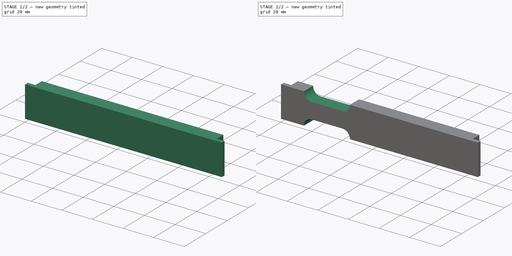
[diagram: build sequence overview — one tinted view per stage of 2, left to right]
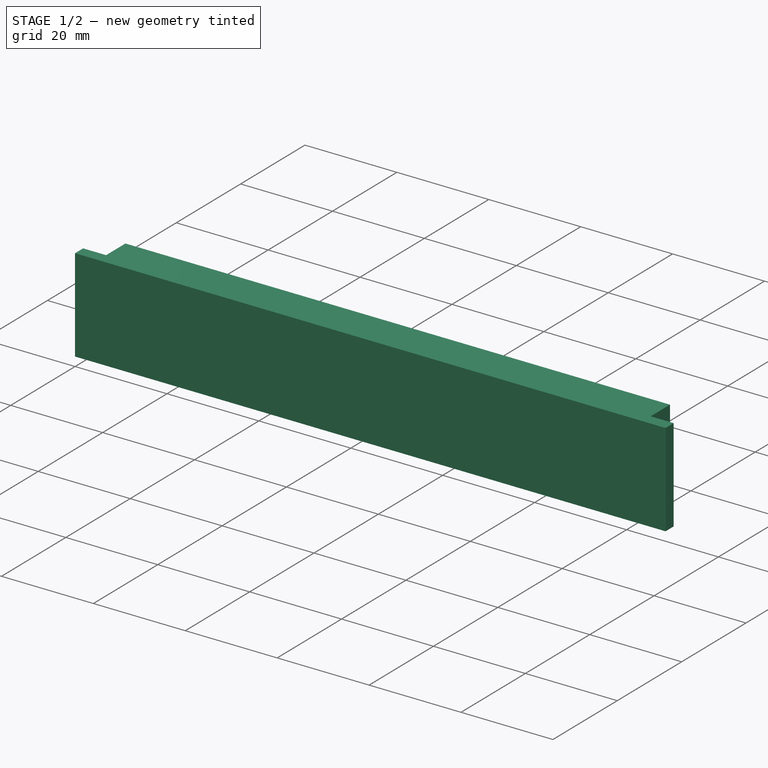
[diagram: stage 1 of 2 — iso view after this stage's code; geometry added in this stage tinted green]
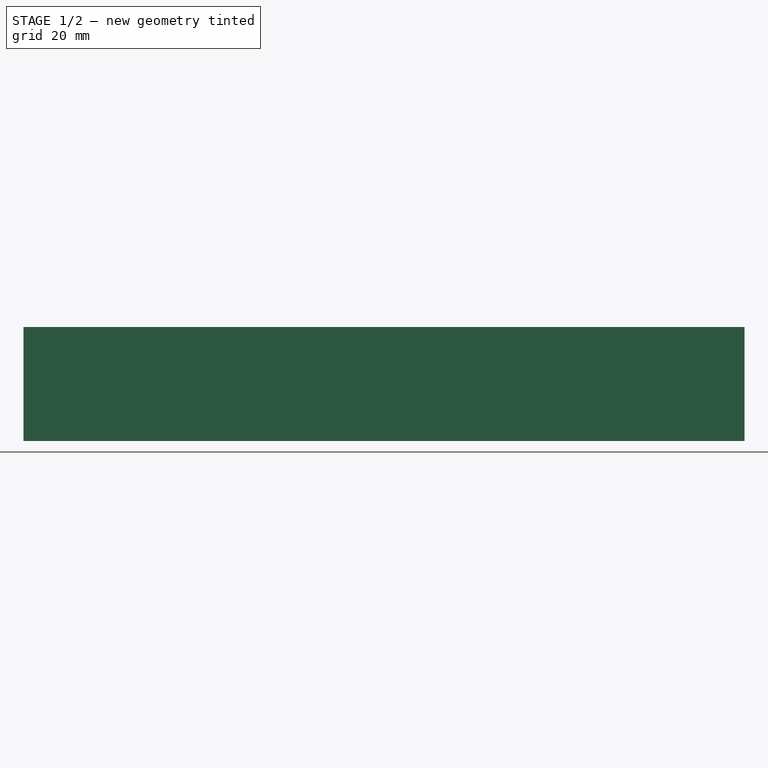
[diagram: stage 1 of 2 — front view after this stage's code; geometry added in this stage tinted green]
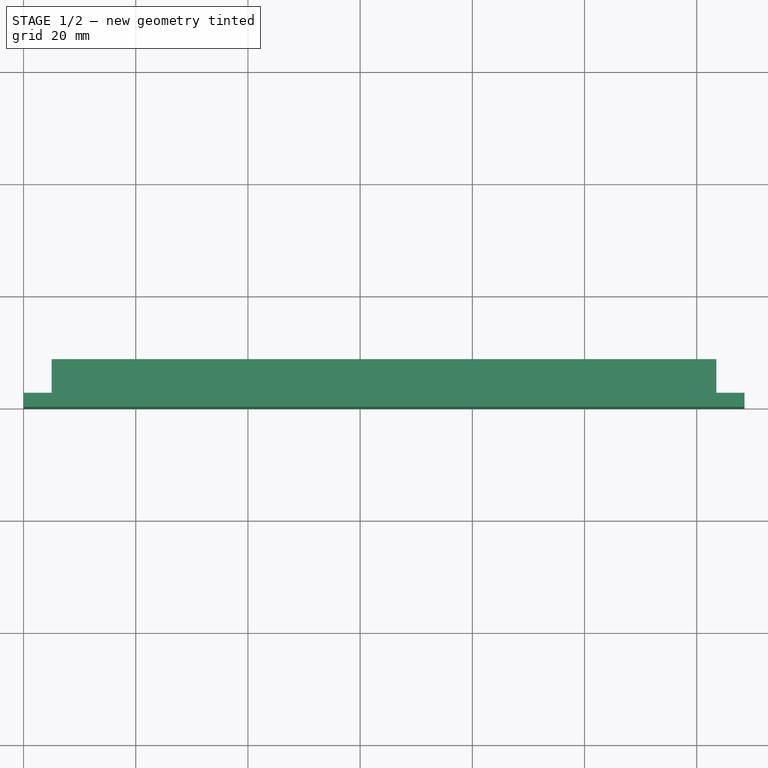
[diagram: stage 1 of 2 — top view after this stage's code; geometry added in this stage tinted green]
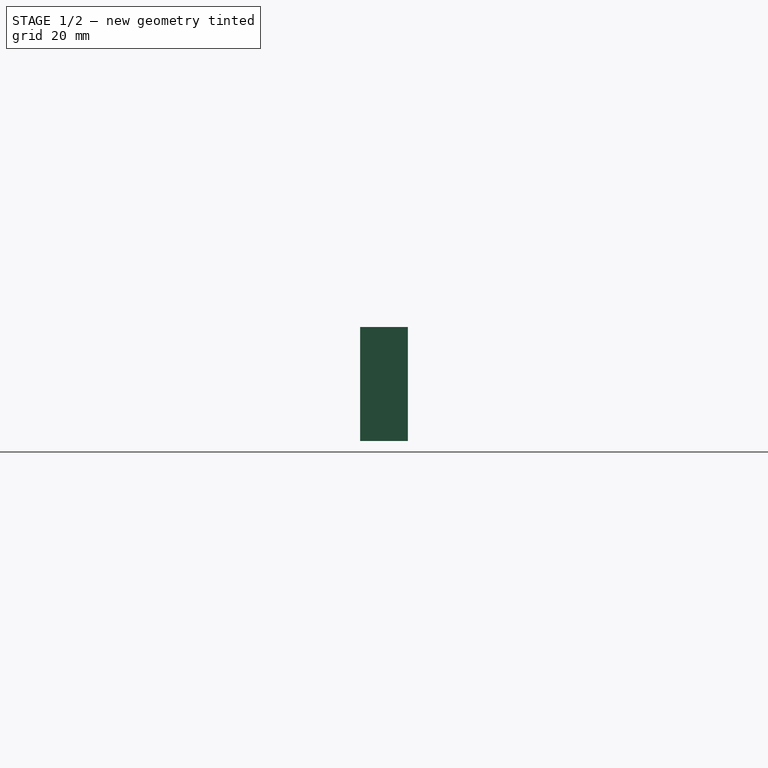
[diagram: stage 1 of 2 — right view after this stage's code; geometry added in this stage tinted green]
FCSTD DOCUMENT  (FreeCAD 0.21R33668 +7 (Git))
Label: blank_panel_4hp
License: All rights reserved
LicenseURL: http://en.wikipedia.org/wiki/All_rights_reserved
objects: Sketcher::SketchObject×3, PartDesign::Pad×1, PartDesign::Pocket×1, PartDesign::Body×1
note: 8 computed .brp shape members not serialized (recipe doc carries the construction recipe); baked Part::Feature solids carry a one-line shape summary decoded from their .brp

FEATURE [Sketcher::SketchObject] Sketch
  FullyConstrained = true
  MapMode = 5
  Support = -> [XY_Plane]
  sketch-geometry (8):
    g0: LineSegment StartX=0 StartY=0 StartZ=0 EndX=0 EndY=2.51 EndZ=0
    g1: LineSegment StartX=0 StartY=2.51 StartZ=0 EndX=5 EndY=2.51 EndZ=0
    g2: LineSegment StartX=5 StartY=2.51 StartZ=0 EndX=4.99997 EndY=8.51 EndZ=0
    g3: LineSegment StartX=4.99997 StartY=8.51 StartZ=0 EndX=123.5 EndY=8.51 EndZ=0
    g4: LineSegment StartX=123.5 StartY=8.51 StartZ=0 EndX=123.5 EndY=2.51 EndZ=0
    g5: LineSegment StartX=123.5 StartY=2.51 StartZ=0 EndX=128.5 EndY=2.51 EndZ=0
    g6: LineSegment StartX=128.5 StartY=2.51 StartZ=0 EndX=128.5 EndY=0 EndZ=0
    g7: LineSegment StartX=128.5 StartY=0 StartZ=0 EndX=0 EndY=0 EndZ=0
  constraints (23):
    c: Coincident(g-1,g0)
    c: PointOnObject(g0,g-2)
    c: Coincident(g0,g1)
    c: Horizontal(g1)
    c: Coincident(g1,g2)
    c: Coincident(g2,g3)
    c: Horizontal(g3)
    c: Coincident(g3,g4)
    c: Vertical(g4)
    c: Coincident(g4,g5)
    c: Horizontal(g5)
    c: Coincident(g5,g6)
    c: PointOnObject(g6,g-1)
    c: Vertical(g6)
    c: Coincident(g6,g7)
    c: Coincident(g7,g0)
    c: Equal(g6,g0)
    c: Equal(g2,g4)
    c: DistanceX(g7,g7) = 128.5
    c: DistanceY(g0,g0) = 2.51
    c: DistanceY(g2,g2) = 6
    c: Equal(g1,g5)
    c: DistanceX(g1,g1) = 5
FEATURE [PartDesign::Pad] Pad
  Direction = (0,0,1)
  Length = 20.32
  Length2 = 10
  Profile = -> Sketch
  ReferenceAxis = -> Sketch [N_Axis]
  Type = 0
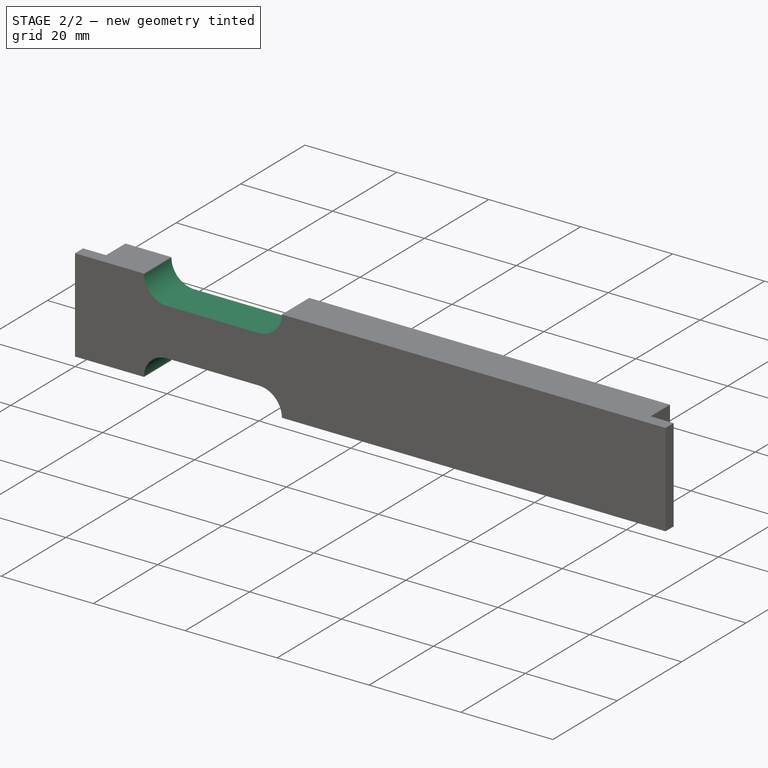
[diagram: stage 2 of 2 — iso view after this stage's code; geometry added in this stage tinted green]
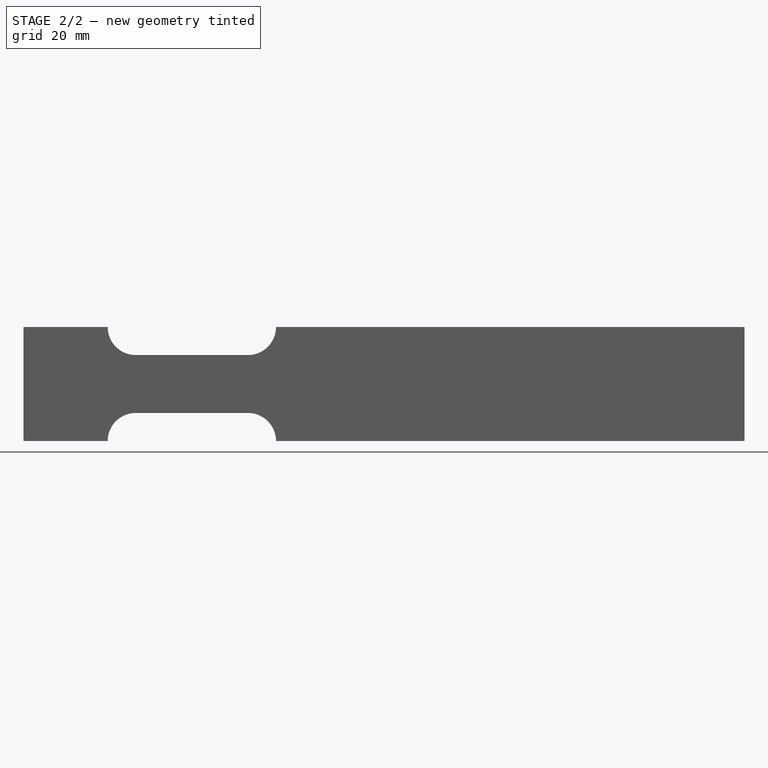
[diagram: stage 2 of 2 — front view after this stage's code; geometry added in this stage tinted green]
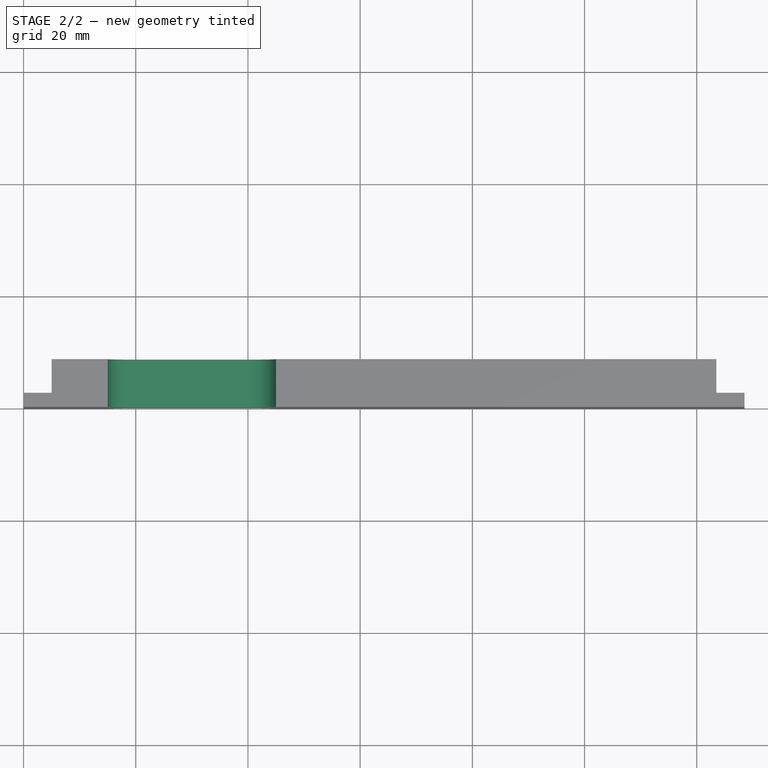
[diagram: stage 2 of 2 — top view after this stage's code; geometry added in this stage tinted green]
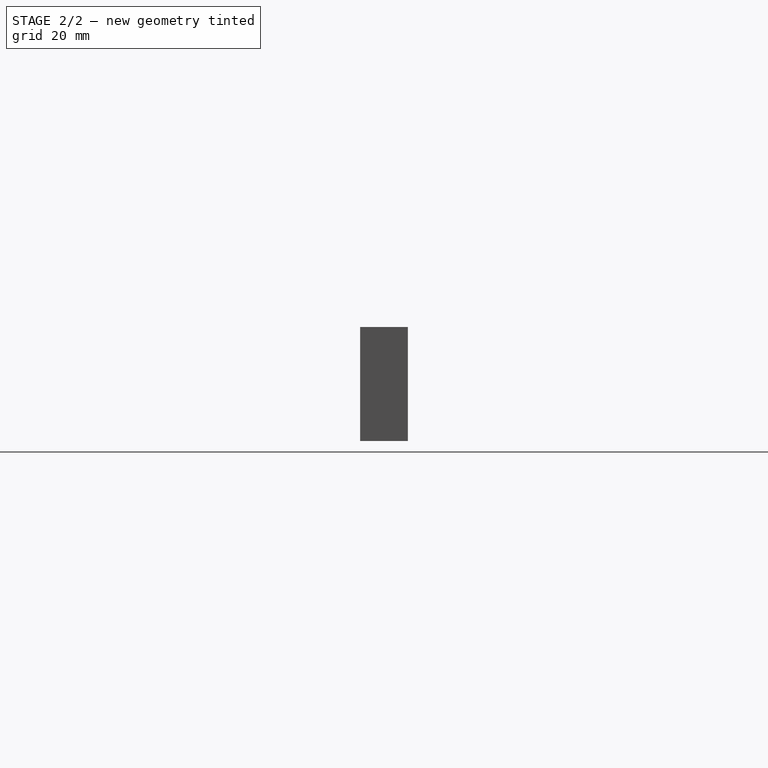
[diagram: stage 2 of 2 — right view after this stage's code; geometry added in this stage tinted green]
FEATURE [Sketcher::SketchObject] Sketch001
  FullyConstrained = true
  MapMode = 5
  Support = -> [XY_Plane]
  sketch-geometry (4):
    g0: LineSegment StartX=10 StartY=1 StartZ=0 EndX=118.5 EndY=1 EndZ=0
    g1: LineSegment StartX=118.5 StartY=1 StartZ=0 EndX=118.5 EndY=-10 EndZ=0
    g2: LineSegment StartX=118.5 StartY=-10 StartZ=0 EndX=10 EndY=-10 EndZ=0
    g3: LineSegment StartX=10 StartY=-10 StartZ=0 EndX=10 EndY=1 EndZ=0
  constraints (12):
    c: Coincident(g0,g1)
    c: Coincident(g1,g2)
    c: Coincident(g2,g3)
    c: Coincident(g3,g0)
    c: Horizontal(g0)
    c: Horizontal(g2)
    c: Vertical(g1)
    c: Vertical(g3)
    c: DistanceY(g0) = 1
    c: DistanceX(g0) = 10
    c: DistanceX(g0,g0) = 108.5
    c: DistanceY(g3,g3) = 11
FEATURE [Sketcher::SketchObject] Sketch002
  FullyConstrained = true
  MapMode = 5
  Placement = pos=(0,0,0) rot=(1,0,0;1.5708rad)
  Support = -> [XZ_Plane]
  sketch-geometry (16):
    g0: ArcOfCircle CenterX=20 CenterY=0 CenterZ=0 NormalX=0 NormalY=0 NormalZ=1 AngleXU=0 Radius=5 StartAngle=1.5708 EndAngle=4.71239
    g1: ArcOfCircle CenterX=40 CenterY=3e-16 CenterZ=0 NormalX=0 NormalY=0 NormalZ=1 AngleXU=0 Radius=5 StartAngle=4.71239 EndAngle=7.85398
    g2: LineSegment StartX=20 StartY=-5 StartZ=0 EndX=40 EndY=-5 EndZ=0
    g3: LineSegment StartX=40 StartY=5 StartZ=0 EndX=20 EndY=5 EndZ=0
    g4: ArcOfCircle CenterX=20 CenterY=20.32 CenterZ=0 NormalX=0 NormalY=0 NormalZ=1 AngleXU=0 Radius=5 StartAngle=1.5708 EndAngle=4.71239
    g5: ArcOfCircle CenterX=40 CenterY=20.32 CenterZ=0 NormalX=0 NormalY=0 NormalZ=1 AngleXU=0 Radius=5 StartAngle=4.71239 EndAngle=7.85398
    g6: LineSegment StartX=20 StartY=15.32 StartZ=0 EndX=40 EndY=15.32 EndZ=0
    g7: LineSegment StartX=40 StartY=25.32 StartZ=0 EndX=20 EndY=25.32 EndZ=0
    g8: ArcOfCircle CenterX=88.5 CenterY=20.32 CenterZ=0 NormalX=0 NormalY=0 NormalZ=1 AngleXU=0 Radius=5 StartAngle=1.5708 EndAngle=4.71239
    g9: ArcOfCircle CenterX=108.5 CenterY=20.32 CenterZ=0 NormalX=0 NormalY=0 NormalZ=1 AngleXU=0 Radius=5 StartAngle=4.71239 EndAngle=7.85398
    g10: LineSegment StartX=88.5 StartY=15.32 StartZ=0 EndX=108.5 EndY=15.32 EndZ=0
    g11: LineSegment StartX=108.5 StartY=25.32 StartZ=0 EndX=88.5 EndY=25.32 EndZ=0
    g12: ArcOfCircle CenterX=88.5 CenterY=0 CenterZ=0 NormalX=0 NormalY=0 NormalZ=1 AngleXU=0 Radius=5 StartAngle=1.5708 EndAngle=4.71239
    g13: ArcOfCircle CenterX=108.5 CenterY=0 CenterZ=0 NormalX=0 NormalY=0 NormalZ=1 AngleXU=0 Radius=5 StartAngle=4.71239 EndAngle=7.85398
    g14: LineSegment StartX=88.5 StartY=-5 StartZ=0 EndX=108.5 EndY=-5 EndZ=0
    g15: LineSegment StartX=108.5 StartY=5 StartZ=0 EndX=88.5 EndY=5 EndZ=0
  constraints (40):
    c: Tangent(g0,g2) = -1.5708
    c: Tangent(g2,g1) = -1.5708
    c: Tangent(g1,g3) = -1.5708
    c: Tangent(g3,g0) = -1.5708
    c: Equal(g0,g1)
    c: Horizontal(g2)
    c: DistanceX(g3,g3) = 20
    c: Diameter(g0) = 10
    c: PointOnObject(g0,g-1)
    c: Tangent(g4,g6) = -1.5708
    c: Tangent(g6,g5) = -1.5708
    c: Tangent(g5,g7) = -1.5708
    c: Tangent(g7,g4) = -1.5708
    c: Equal(g4,g5)
    c: Horizontal(g6)
    c: Tangent(g8,g10) = -1.5708
    c: Tangent(g10,g9) = -1.5708
    c: Tangent(g9,g11) = -1.5708
    c: Tangent(g11,g8) = -1.5708
    c: Equal(g8,g9)
    c: Horizontal(g10)
    c: Tangent(g12,g14) = -1.5708
    c: Tangent(g14,g13) = -1.5708
    c: Tangent(g13,g15) = -1.5708
    c: Tangent(g15,g12) = -1.5708
    c: Equal(g12,g13)
    c: PointOnObject(g12,g-1)
    c: PointOnObject(g13,g-1)
    c: Equal(g3,g15)
    c: Equal(g15,g6)
    c: Equal(g6,g10)
    c: Equal(g8,g5)
    c: Equal(g5,g1)
    c: Equal(g1,g12)
    c: PointOnObject(g4,g10)
    c: DistanceX(g4) = 20
    c: DistanceX(g9) = 108.5
    c: DistanceX(g13) = 108.5
    c: DistanceY(g8) = 20.32
    c: DistanceX(g0) = 20
FEATURE [PartDesign::Pocket] Pocket
  BaseFeature = -> Pad
  Direction = (0,1,2e-16)
  Length = 21
  Length2 = 5
  Profile = -> Sketch002
  ReferenceAxis = -> Sketch002 [N_Axis]
  Type = 0
FEATURE [PartDesign::Body] Body
  Group = -> [Sketch,Pad,Sketch001,Sketch002,Pocket]
  Origin = -> Origin
  Tip = -> Pocket
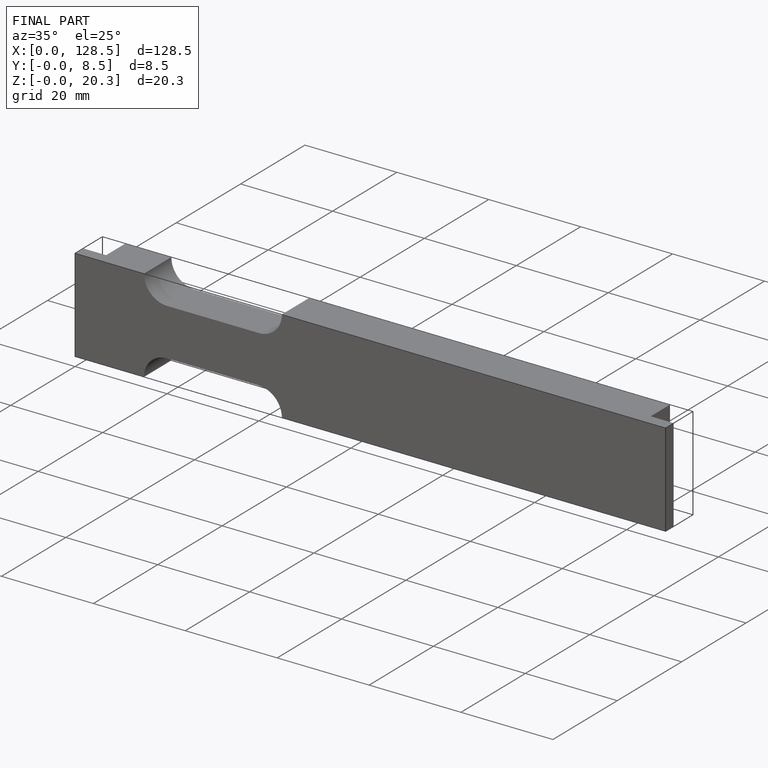
[diagram: finished part — iso view with bounding-box wireframe]
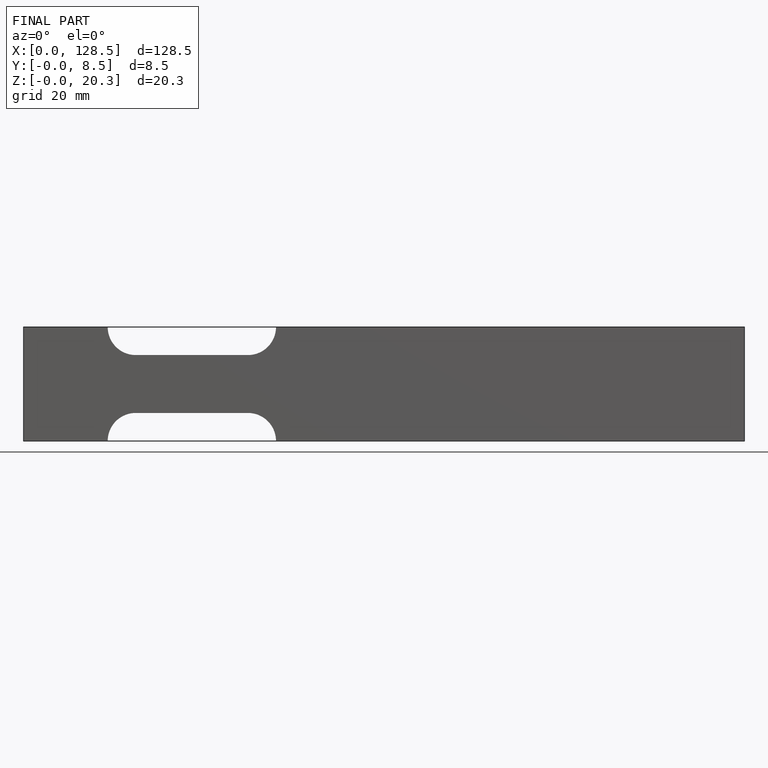
[diagram: finished part — front view with bounding-box wireframe]
